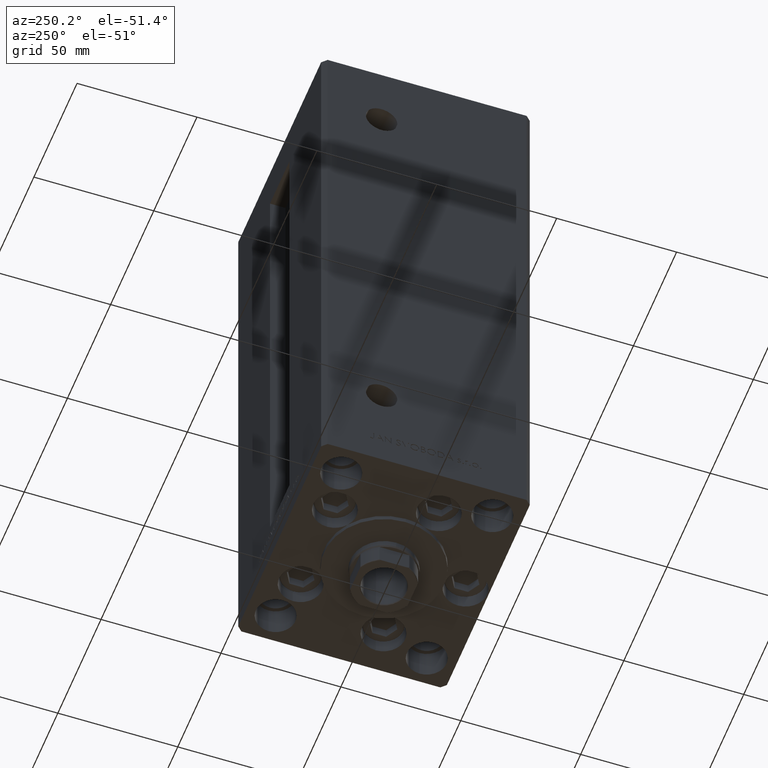
[diagram: clean part render]
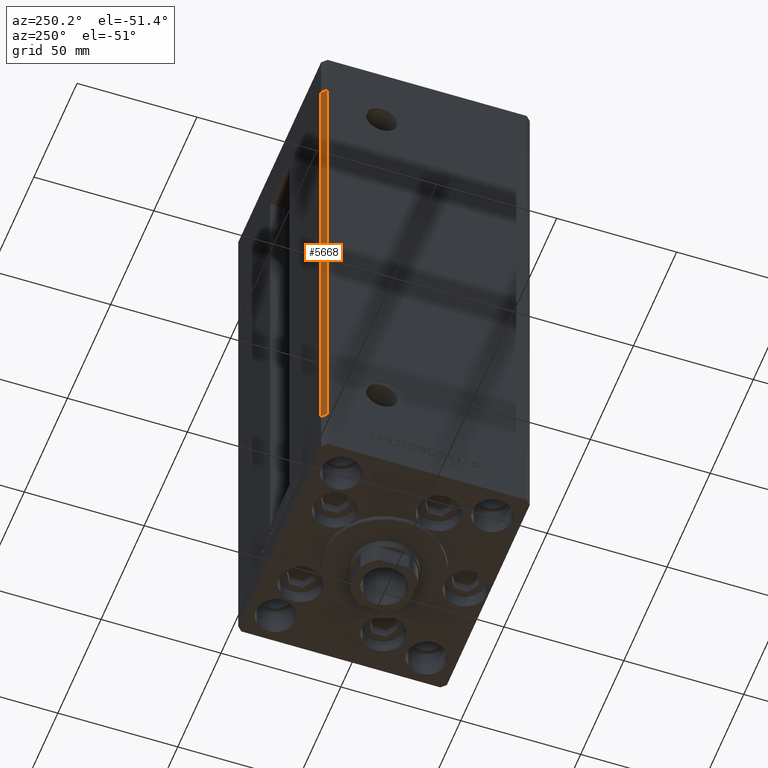
[diagram: same view with one face highlighted and labeled with its STEP entity id]
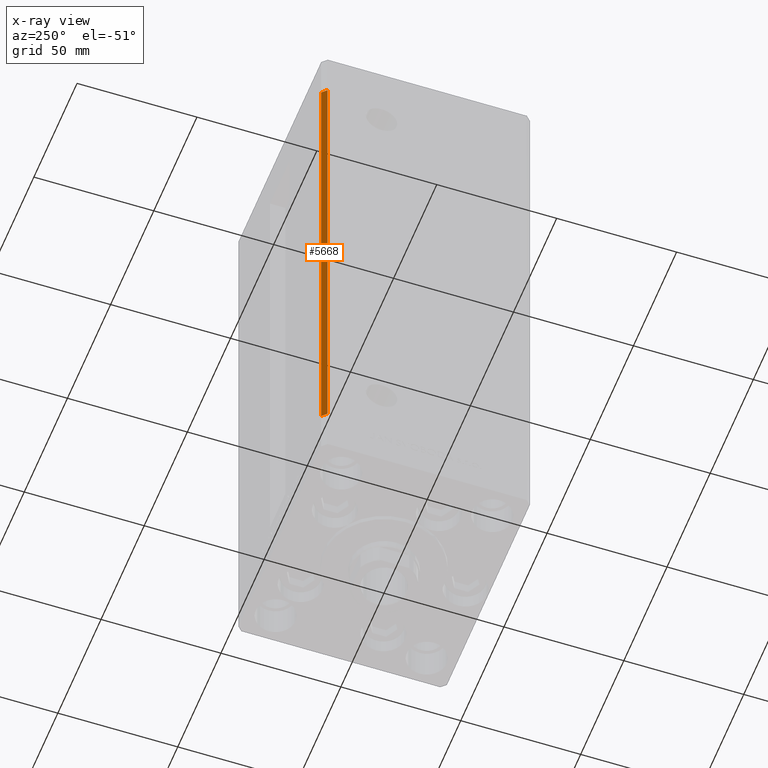
[diagram: x-ray of the same camera — body ghosted, the highlighted face saturated]
A machine part, auxiliary view. The second image highlights one B-rep face of the part: STEP entity #5668.
The next image is the same camera in x-ray: the body ghosted, the highlighted face saturated — about 0% of this face is hidden behind the body in this view.
In plain terms, the highlighted planar face has unit normal (0.7071, -0.7071, 0).
Its self-contained STEP definition (entity closure, byte-faithful):
#1849 = VECTOR ( 'NONE', #31719, 1000.000000000000000 ) ;
#2884 = VECTOR ( 'NONE', #23890, 1000.000000000000000 ) ;
#3201 = EDGE_LOOP ( 'NONE', ( #25446, #8703, #38079, #43996 ) ) ;
#4167 = DIRECTION ( 'NONE',  ( -0.7071067811865487940, -0.7071067811865463515, 0.000000000000000000 ) ) ;
#5668 = ADVANCED_FACE ( 'NONE', ( #26080 ), #10396, .F. ) ;
#5920 = VERTEX_POINT ( 'NONE', #45743 ) ;
#6837 = DIRECTION ( 'NONE',  ( 0.7071067811865487940, 0.7071067811865463515, 0.000000000000000000 ) ) ;
#8437 = CARTESIAN_POINT ( 'NONE',  ( -48.00000000000000711, 43.50000000000000000, 203.5000000000000000 ) ) ;
#8703 = ORIENTED_EDGE ( 'NONE', *, *, #43027, .F. ) ;
#10396 = PLANE ( 'NONE',  #38848 ) ;
#10883 = DIRECTION ( 'NONE',  ( 0.7071067811865463515, -0.7071067811865487940, 0.000000000000000000 ) ) ;
#11342 = EDGE_CURVE ( 'NONE', #33586, #19304, #27671, .T. ) ;
#14693 = DIRECTION ( 'NONE',  ( -0.000000000000000000, -0.000000000000000000, -1.000000000000000000 ) ) ;
#16622 = VERTEX_POINT ( 'NONE', #34809 ) ;
#18497 = LINE ( 'NONE', #49380, #47613 ) ;
#19304 = VERTEX_POINT ( 'NONE', #45245 ) ;
#20632 = LINE ( 'NONE', #31755, #46848 ) ;
#22569 = EDGE_CURVE ( 'NONE', #33586, #16622, #49985, .T. ) ;
#23890 = DIRECTION ( 'NONE',  ( -0.7071067811865487940, -0.7071067811865463515, 0.000000000000000000 ) ) ;
#25446 = ORIENTED_EDGE ( 'NONE', *, *, #44323, .T. ) ;
#25835 = CARTESIAN_POINT ( 'NONE',  ( -48.00000000000000711, 43.50000000000000000, 203.5000000000000000 ) ) ;
#26080 = FACE_OUTER_BOUND ( 'NONE', #3201, .T. ) ;
#27671 = LINE ( 'NONE', #27925, #1849 ) ;
#27925 = CARTESIAN_POINT ( 'NONE',  ( -48.00000000000000711, 43.50000000000000000, 203.5000000000000000 ) ) ;
#31719 = DIRECTION ( 'NONE',  ( -0.000000000000000000, -0.000000000000000000, -1.000000000000000000 ) ) ;
#31755 = CARTESIAN_POINT ( 'NONE',  ( -48.00000000000000711, 43.50000000000000000, 0.000000000000000000 ) ) ;
#32356 = CARTESIAN_POINT ( 'NONE',  ( -48.00000000000000711, 43.50000000000000000, 203.5000000000000000 ) ) ;
#33586 = VERTEX_POINT ( 'NONE', #32356 ) ;
#34809 = CARTESIAN_POINT ( 'NONE',  ( -50.00000000000001421, 41.49999999999999289, 203.5000000000000000 ) ) ;
#38079 = ORIENTED_EDGE ( 'NONE', *, *, #22569, .F. ) ;
#38848 = AXIS2_PLACEMENT_3D ( 'NONE', #25835, #10883, #6837 ) ;
#43027 = EDGE_CURVE ( 'NONE', #16622, #5920, #18497, .T. ) ;
#43996 = ORIENTED_EDGE ( 'NONE', *, *, #11342, .T. ) ;
#44323 = EDGE_CURVE ( 'NONE', #19304, #5920, #20632, .T. ) ;
#45245 = CARTESIAN_POINT ( 'NONE',  ( -48.00000000000000711, 43.50000000000000000, 0.000000000000000000 ) ) ;
#45743 = CARTESIAN_POINT ( 'NONE',  ( -50.00000000000001421, 41.49999999999999289, 0.000000000000000000 ) ) ;
#46848 = VECTOR ( 'NONE', #4167, 1000.000000000000000 ) ;
#47613 = VECTOR ( 'NONE', #14693, 1000.000000000000000 ) ;
#49380 = CARTESIAN_POINT ( 'NONE',  ( -50.00000000000001421, 41.49999999999999289, 203.5000000000000000 ) ) ;
#49985 = LINE ( 'NONE', #8437, #2884 ) ;